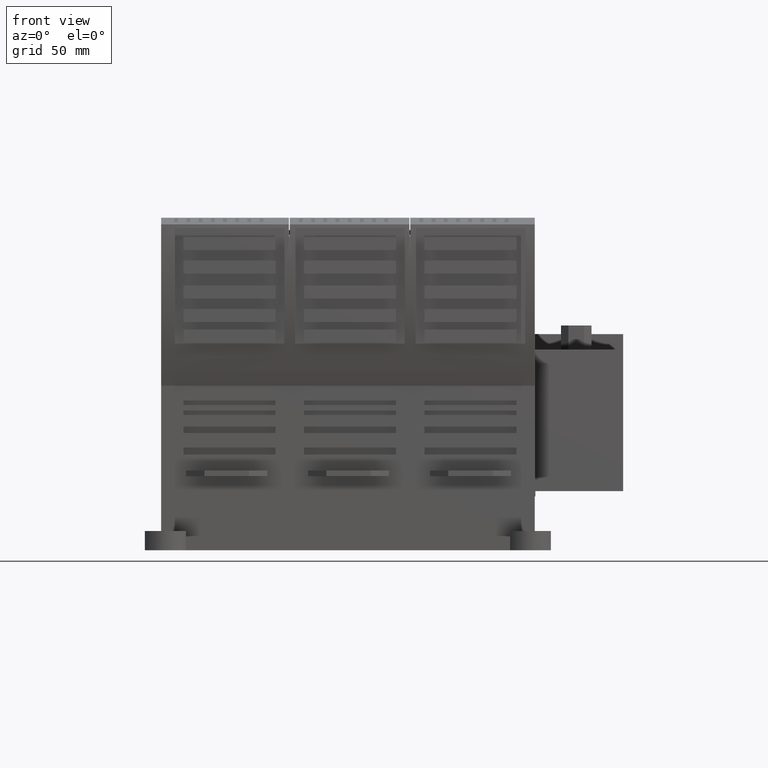
[diagram: clean part render]
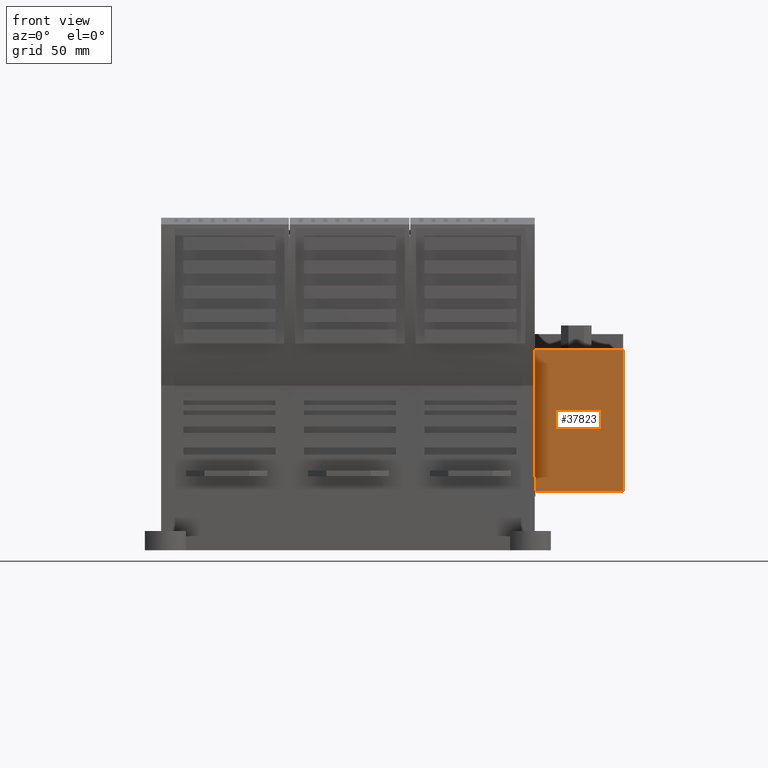
[diagram: same view with one face highlighted and labeled with its STEP entity id]
A machine part, front view. The second image highlights one B-rep face of the part: STEP entity #37823.
In plain terms, the highlighted planar face has unit normal (0, -1, 0).
Its self-contained STEP definition (entity closure, byte-faithful):
#9394=DIRECTION('',(0.E0,0.E0,-1.E0));
#9395=VECTOR('',#9394,7.6708E1);
#9396=CARTESIAN_POINT('',(1.491E2,-5.9072E1,1.9554E1));
#9397=LINE('',#9396,#9395);
#10216=DIRECTION('',(0.E0,0.E0,-1.E0));
#10217=VECTOR('',#10216,6.9096E1);
#10218=CARTESIAN_POINT('',(1.01213E2,-5.9072E1,1.9554E1));
#10219=LINE('',#10218,#10217);
#10220=DIRECTION('',(1.E0,0.E0,0.E0));
#10221=VECTOR('',#10220,4.7887E1);
#10222=CARTESIAN_POINT('',(1.01213E2,-5.9072E1,1.9554E1));
#10223=LINE('',#10222,#10221);
#10224=DIRECTION('',(0.E0,0.E0,1.E0));
#10225=VECTOR('',#10224,7.612E0);
#10226=CARTESIAN_POINT('',(1.016E2,-5.9072E1,-5.7154E1));
#10227=LINE('',#10226,#10225);
#10228=DIRECTION('',(-1.E0,0.E0,0.E0));
#10229=VECTOR('',#10228,3.87E-1);
#10230=CARTESIAN_POINT('',(1.016E2,-5.9072E1,-4.9542E1));
#10231=LINE('',#10230,#10229);
#10244=DIRECTION('',(1.E0,0.E0,0.E0));
#10245=VECTOR('',#10244,4.75E1);
#10246=CARTESIAN_POINT('',(1.016E2,-5.9072E1,-5.7154E1));
#10247=LINE('',#10246,#10245);
#21036=CARTESIAN_POINT('',(1.491E2,-5.9072E1,1.9554E1));
#21037=CARTESIAN_POINT('',(1.491E2,-5.9072E1,-5.7154E1));
#21038=VERTEX_POINT('',#21036);
#21039=VERTEX_POINT('',#21037);
#21306=CARTESIAN_POINT('',(1.016E2,-5.9072E1,-4.9542E1));
#21307=VERTEX_POINT('',#21306);
#21308=CARTESIAN_POINT('',(1.016E2,-5.9072E1,-5.7154E1));
#21309=VERTEX_POINT('',#21308);
#26906=CARTESIAN_POINT('',(1.01213E2,-5.9072E1,1.9554E1));
#26907=CARTESIAN_POINT('',(1.01213E2,-5.9072E1,-4.9542E1));
#26908=VERTEX_POINT('',#26906);
#26909=VERTEX_POINT('',#26907);
#37807=CARTESIAN_POINT('',(9.906E1,-5.9072E1,1.9554E1));
#37808=DIRECTION('',(0.E0,-1.E0,0.E0));
#37809=DIRECTION('',(0.E0,0.E0,-1.E0));
#37810=AXIS2_PLACEMENT_3D('',#37807,#37808,#37809);
#37811=PLANE('',#37810);
#37812=ORIENTED_EDGE('',*,*,#33919,.F.);
#37813=ORIENTED_EDGE('',*,*,#37767,.T.);
#37814=ORIENTED_EDGE('',*,*,#35938,.T.);
#37816=ORIENTED_EDGE('',*,*,#37815,.F.);
#37818=ORIENTED_EDGE('',*,*,#37817,.T.);
#37820=ORIENTED_EDGE('',*,*,#37819,.T.);
#37821=EDGE_LOOP('',(#37812,#37813,#37814,#37816,#37818,#37820));
#37822=FACE_OUTER_BOUND('',#37821,.F.);
#37823=ADVANCED_FACE('',(#37822),#37811,.T.);
#33919=EDGE_CURVE('',#26908,#26909,#10219,.T.);
#35938=EDGE_CURVE('',#21038,#21039,#9397,.T.);
#37767=EDGE_CURVE('',#26908,#21038,#10223,.T.);
#37815=EDGE_CURVE('',#21309,#21039,#10247,.T.);
#37817=EDGE_CURVE('',#21309,#21307,#10227,.T.);
#37819=EDGE_CURVE('',#21307,#26909,#10231,.T.);